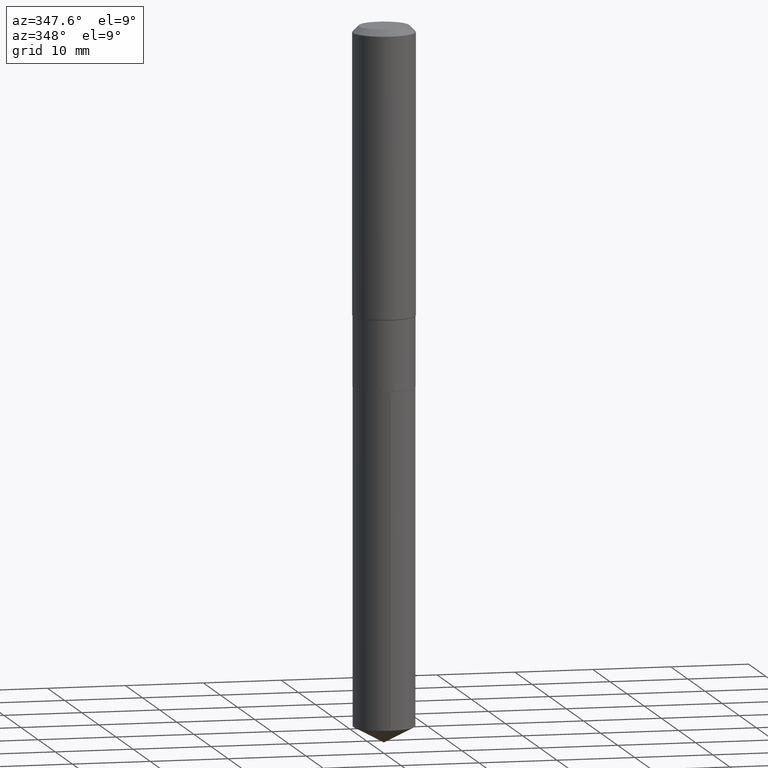
[diagram: clean part render]
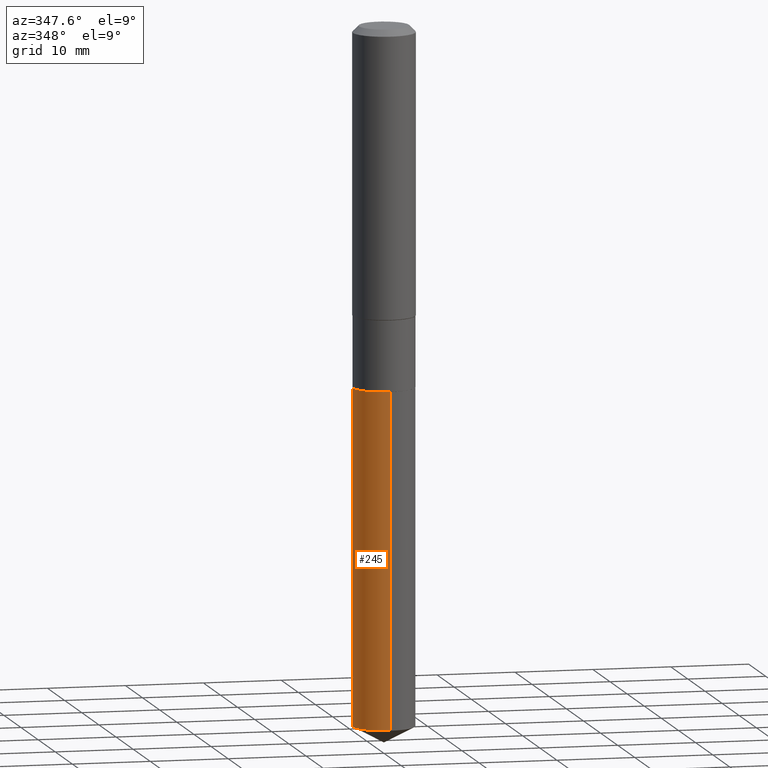
[diagram: same view with one face highlighted and labeled with its STEP entity id]
A machine part, auxiliary view. The second image highlights one B-rep face of the part: STEP entity #245.
In plain terms, the highlighted cylindrical surface (edge-blend (fillet) strip) has radius 3.9497 mm, axis along (-0, 0, 1).
Its self-contained STEP definition (entity closure, byte-faithful):
#11 = CIRCLE ( 'NONE', #487, 0.1554999999999999993 ) ;
#23 = DIRECTION ( 'NONE',  ( -6.982962677686265133E-15, -1.000000000000000000, 3.513630860018345064E-15 ) ) ;
#32 = CARTESIAN_POINT ( 'NONE',  ( 4.419206679657160853E-29, -6.309455927423449056E-15, -1.807100000000000151 ) ) ;
#34 = FACE_OUTER_BOUND ( 'NONE', #89, .T. ) ;
#59 = EDGE_CURVE ( 'NONE', #133, #376, #242, .T. ) ;
#82 = CARTESIAN_POINT ( 'NONE',  ( 4.419206679657160853E-29, -6.309455927423449056E-15, -1.807100000000000151 ) ) ;
#89 = EDGE_LOOP ( 'NONE', ( #397, #399, #425, #115 ) ) ;
#91 = EDGE_CURVE ( 'NONE', #376, #285, #102, .T. ) ;
#102 = LINE ( 'NONE', #253, #489 ) ;
#115 = ORIENTED_EDGE ( 'NONE', *, *, #371, .F. ) ;
#133 = VERTEX_POINT ( 'NONE', #327 ) ;
#137 = AXIS2_PLACEMENT_3D ( 'NONE', #476, #209, #23 ) ;
#166 = DIRECTION ( 'NONE',  ( -2.445453521362927048E-29, 3.491503227578508075E-15, 1.000000000000000000 ) ) ;
#170 = EDGE_CURVE ( 'NONE', #133, #309, #296, .T. ) ;
#183 = DIRECTION ( 'NONE',  ( -2.445453521362927048E-29, 3.491503227578508075E-15, 1.000000000000000000 ) ) ;
#188 = DIRECTION ( 'NONE',  ( -6.982962677686265133E-15, -1.000000000000000000, 3.513630860018345064E-15 ) ) ;
#190 = CARTESIAN_POINT ( 'NONE',  ( 1.104893954107041376E-15, 0.1554999999999936711, -1.807100000000000817 ) ) ;
#198 = DIRECTION ( 'NONE',  ( -2.445453521362927048E-29, 3.491503227578508075E-15, 1.000000000000000000 ) ) ;
#209 = DIRECTION ( 'NONE',  ( -2.445453521362927048E-29, 3.491503227578508075E-15, 1.000000000000000000 ) ) ;
#242 = CIRCLE ( 'NONE', #137, 0.1554999999999999993 ) ;
#245 = ADVANCED_FACE ( 'NONE', ( #34 ), #484, .T. ) ;
#253 = CARTESIAN_POINT ( 'NONE',  ( -1.085850696380170092E-15, -0.1555000000000062998, -1.807099999999999707 ) ) ;
#254 = CARTESIAN_POINT ( 'NONE',  ( -1.085850696380170092E-15, -0.1555000000000062998, -1.807099999999999707 ) ) ;
#270 = VECTOR ( 'NONE', #183, 39.37007874015748143 ) ;
#285 = VERTEX_POINT ( 'NONE', #254 ) ;
#296 = LINE ( 'NONE', #407, #270 ) ;
#309 = VERTEX_POINT ( 'NONE', #190 ) ;
#327 = CARTESIAN_POINT ( 'NONE',  ( 1.104893954107041376E-15, 0.1554999999999877869, -3.500019183376640530 ) ) ;
#342 = DIRECTION ( 'NONE',  ( -6.982962677686265133E-15, -1.000000000000000000, 3.513630860018345064E-15 ) ) ;
#344 = AXIS2_PLACEMENT_3D ( 'NONE', #32, #412, #188 ) ;
#371 = EDGE_CURVE ( 'NONE', #309, #285, #11, .T. ) ;
#376 = VERTEX_POINT ( 'NONE', #417 ) ;
#397 = ORIENTED_EDGE ( 'NONE', *, *, #170, .F. ) ;
#399 = ORIENTED_EDGE ( 'NONE', *, *, #59, .T. ) ;
#407 = CARTESIAN_POINT ( 'NONE',  ( 1.104893954106999566E-15, 0.1554999999999936711, -1.807100000000000817 ) ) ;
#412 = DIRECTION ( 'NONE',  ( -2.445453521362927048E-29, 3.491503227578508075E-15, 1.000000000000000000 ) ) ;
#417 = CARTESIAN_POINT ( 'NONE',  ( -1.085850696380128874E-15, -0.1555000000000122118, -3.500019183376639642 ) ) ;
#425 = ORIENTED_EDGE ( 'NONE', *, *, #91, .T. ) ;
#476 = CARTESIAN_POINT ( 'NONE',  ( 8.559161858028415094E-29, -1.222028872021255922E-14, -3.500019183376640086 ) ) ;
#484 = CYLINDRICAL_SURFACE ( 'NONE', #344, 0.1554999999999999993 ) ;
#487 = AXIS2_PLACEMENT_3D ( 'NONE', #82, #198, #342 ) ;
#489 = VECTOR ( 'NONE', #166, 39.37007874015748143 ) ;